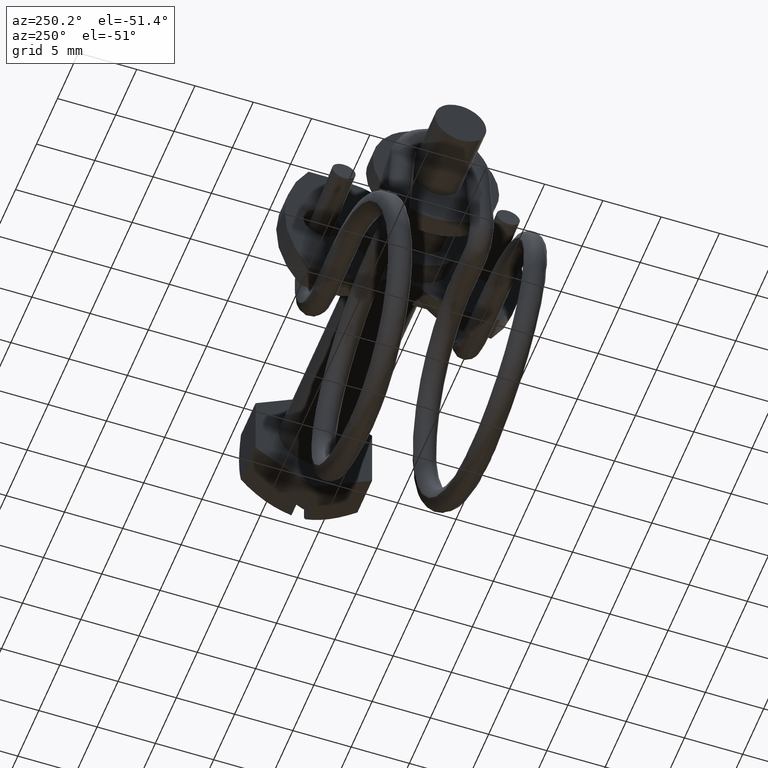
[diagram: clean part render]
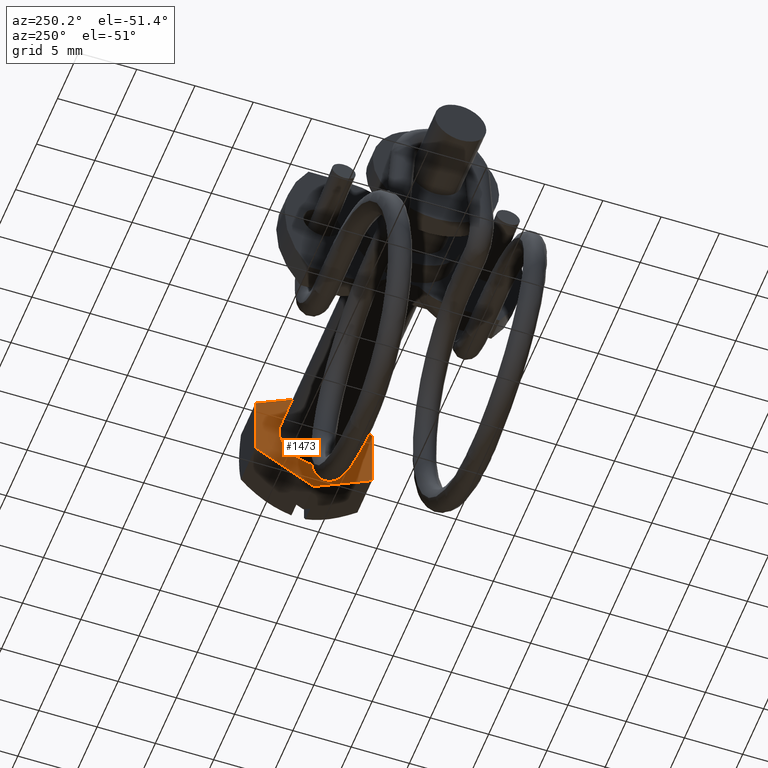
[diagram: same view with one face highlighted and labeled with its STEP entity id]
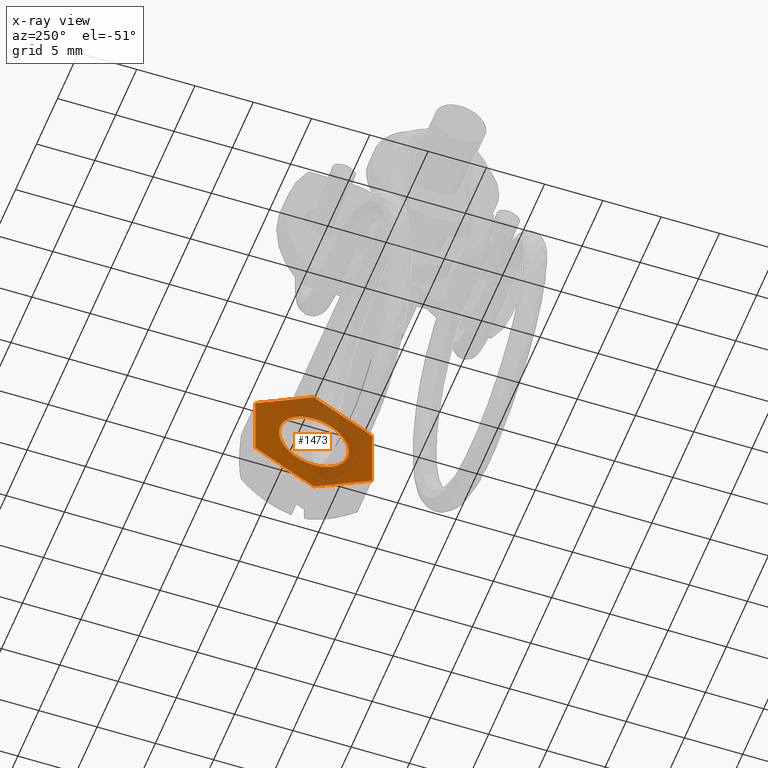
[diagram: x-ray of the same camera — body ghosted, the highlighted face saturated]
A machine part, auxiliary view. The second image highlights one B-rep face of the part: STEP entity #1473.
The next image is the same camera in x-ray: the body ghosted, the highlighted face saturated — about 39% of this face is hidden behind the body in this view.
In plain terms, the highlighted face is a freeform B-spline surface patch.
Its self-contained STEP definition (entity closure, byte-faithful):
#589=CARTESIAN_POINT('',(0.0,0.0,-3.0));
#590=VERTEX_POINT('',#589);
#591=CARTESIAN_POINT('',(5.712097E-014,2.102727746678321,-2.139751260807657));
#592=VERTEX_POINT('',#591);
#593=CARTESIAN_POINT('',(0.0,0.0,-3.0));
#594=CARTESIAN_POINT('',(7.582617E-015,0.279130018906865,-3.000098657542075));
#595=CARTESIAN_POINT('',(1.977837E-014,0.728078157412243,-2.936866854855096));
#596=CARTESIAN_POINT('',(3.554602E-014,1.308514160034198,-2.715660136565889));
#597=CARTESIAN_POINT('',(4.722256E-014,1.738349002171773,-2.461511566771414));
#598=CARTESIAN_POINT('',(5.406441E-014,1.990210032215983,-2.250332992287404));
#599=CARTESIAN_POINT('',(5.712097E-014,2.102727746678321,-2.139751260807657));
#600=B_SPLINE_CURVE_WITH_KNOTS('',3,(#593,#594,#595,#596,#597,#598,#599),.UNSPECIFIED.,.F.,.U.,(4,1,1,1,4),(8.240594E-009,0.837357205685020,1.347046372006930,1.856743269610042,2.330028839372953),.UNSPECIFIED.);
#601=EDGE_CURVE('',#590,#592,#600,.T.);
#603=CARTESIAN_POINT('',(0.0,-2.999999999999977,-0.000000376871535));
#604=VERTEX_POINT('',#603);
#605=CARTESIAN_POINT('',(0.0,-2.999999999999977,-0.000000376871535));
#606=CARTESIAN_POINT('',(0.0,-3.000021340475270,-0.184078000937512));
#607=CARTESIAN_POINT('',(0.0,-2.970534396940662,-0.503137248731517));
#608=CARTESIAN_POINT('',(0.0,-2.854190378377742,-0.955819971089859));
#609=CARTESIAN_POINT('',(0.0,-2.670550809957748,-1.399203420342934));
#610=CARTESIAN_POINT('',(0.0,-2.413268030836662,-1.805498225597032));
#611=CARTESIAN_POINT('',(0.0,-2.044088955693919,-2.217890061088955));
#612=CARTESIAN_POINT('',(0.0,-1.606096494430101,-2.559728283793609));
#613=CARTESIAN_POINT('',(0.0,-1.074155712069449,-2.819328080658640));
#614=CARTESIAN_POINT('',(0.0,-0.539951603878852,-2.967138629982071));
#615=CARTESIAN_POINT('',(0.0,-0.184076502783618,-3.000019889240078));
#616=CARTESIAN_POINT('',(0.0,0.0,-3.0));
#617=B_SPLINE_CURVE_WITH_KNOTS('',3,(#605,#606,#607,#608,#609,#610,#611,#612,#613,#614,#615,#616),.UNSPECIFIED.,.F.,.U.,(4,1,1,1,1,1,1,1,1,4),(0.000000030675332,0.552231513152408,0.957209199102623,1.399001721730165,1.988060695318683,2.393016103462590,3.055701798754166,3.644762689075339,4.160189628742622,4.712418336213807),.UNSPECIFIED.);
#618=EDGE_CURVE('',#604,#590,#617,.T.);
#620=CARTESIAN_POINT('',(5.712097E-014,-2.102727746678314,2.139751260807650));
#621=VERTEX_POINT('',#620);
#622=CARTESIAN_POINT('',(5.712097E-014,-2.102727746678314,2.139751260807650));
#623=CARTESIAN_POINT('',(5.363882E-014,-2.235495162240474,2.009309860084758));
#624=CARTESIAN_POINT('',(4.677441E-014,-2.452505298705501,1.752168811714757));
#625=CARTESIAN_POINT('',(3.504890E-014,-2.711964817352053,1.312931355633683));
#626=CARTESIAN_POINT('',(1.987282E-014,-2.933965564156122,0.744435517848420));
#627=CARTESIAN_POINT('',(7.618931E-015,-3.000123289216129,0.285404760503443));
#628=CARTESIAN_POINT('',(0.0,-2.999999999999977,-0.000000376871535));
#629=B_SPLINE_CURVE_WITH_KNOTS('',3,(#622,#623,#624,#625,#626,#627,#628),.UNSPECIFIED.,.F.,.U.,(4,1,1,1,4),(9.201337E-009,0.558372415715976,1.005072471479188,1.526215308070677,2.382390023058626),.UNSPECIFIED.);
#630=EDGE_CURVE('',#621,#604,#629,.T.);
#666=CARTESIAN_POINT('',(0.0,2.999999999999977,0.000000376871494));
#667=VERTEX_POINT('',#666);
#668=CARTESIAN_POINT('',(5.712097E-014,2.102727746678321,-2.139751260807657));
#669=CARTESIAN_POINT('',(5.317454E-014,2.253195300451661,-1.991917709924629));
#670=CARTESIAN_POINT('',(4.365881E-014,2.546584888944685,-1.635458382727389));
#671=CARTESIAN_POINT('',(2.899697E-014,2.818106770440074,-1.086225959998404));
#672=CARTESIAN_POINT('',(1.391178E-014,2.968711369994050,-0.521134784307661));
#673=CARTESIAN_POINT('',(4.968608E-015,3.000020334482753,-0.186123663339081));
#674=CARTESIAN_POINT('',(0.0,2.999999999999977,0.000000376871494));
#675=B_SPLINE_CURVE_WITH_KNOTS('',3,(#668,#669,#670,#671,#672,#673,#674),.UNSPECIFIED.,.F.,.U.,(4,1,1,1,4),(9.201515E-009,0.632822609612245,1.377317560774177,1.824017616540802,2.382390023058587),.UNSPECIFIED.);
#676=EDGE_CURVE('',#592,#667,#675,.T.);
#683=CARTESIAN_POINT('',(0.0,0.0,3.0));
#684=VERTEX_POINT('',#683);
#685=CARTESIAN_POINT('',(0.0,0.0,3.0));
#686=CARTESIAN_POINT('',(4.944969E-015,-0.182033373166678,3.000018829668836));
#687=CARTESIAN_POINT('',(1.384560E-014,-0.509681980636240,2.970075322213208));
#688=CARTESIAN_POINT('',(2.887987E-014,-1.063120941483481,2.825964490192257));
#689=CARTESIAN_POINT('',(4.353902E-014,-1.602751114935422,2.565925118372403));
#690=CARTESIAN_POINT('',(5.312418E-014,-1.955598457465110,2.284368098532413));
#691=CARTESIAN_POINT('',(5.712097E-014,-2.102727746678314,2.139751260807650));
#692=B_SPLINE_CURVE_WITH_KNOTS('',3,(#685,#686,#687,#688,#689,#690,#691),.UNSPECIFIED.,.F.,.U.,(4,1,1,1,4),(8.240195E-009,0.546100279163755,0.982982475612605,1.711114694730162,2.330028839372951),.UNSPECIFIED.);
#693=EDGE_CURVE('',#684,#621,#692,.T.);
#695=CARTESIAN_POINT('',(0.0,2.999999999999977,0.000000376871494));
#696=CARTESIAN_POINT('',(0.0,3.000014154251538,0.196347416634234));
#697=CARTESIAN_POINT('',(0.0,2.955315705059517,0.650419377666996));
#698=CARTESIAN_POINT('',(0.0,2.757664722253820,1.236685183868665));
#699=CARTESIAN_POINT('',(0.0,2.475688447632442,1.713569366037854));
#700=CARTESIAN_POINT('',(0.0,2.150455960498429,2.114933440990144));
#701=CARTESIAN_POINT('',(0.0,1.767146774211178,2.445573000309209));
#702=CARTESIAN_POINT('',(0.0,1.341875106527069,2.693387193799471));
#703=CARTESIAN_POINT('',(0.0,0.932946489137354,2.862781788418529));
#704=CARTESIAN_POINT('',(0.0,0.490870604336879,2.973517499908330));
#705=CARTESIAN_POINT('',(0.0,0.159531096282292,3.000007860002559));
#706=CARTESIAN_POINT('',(0.0,0.0,3.0));
#707=B_SPLINE_CURVE_WITH_KNOTS('',3,(#695,#696,#697,#698,#699,#700,#701,#702,#703,#704,#705,#706),.UNSPECIFIED.,.F.,.U.,(4,1,1,1,1,1,1,1,1,4),(0.000000030674934,0.589051886724058,1.362184178377192,1.840797948579152,2.245776641370526,2.908437889461853,3.350234743665167,3.718392774799742,4.233822062988002,4.712418336213831),.UNSPECIFIED.);
#708=EDGE_CURVE('',#667,#684,#707,.T.);
#1416=CARTESIAN_POINT('',(0.0,-5.499499980618059,-6.350276877369552));
#1417=CARTESIAN_POINT('',(0.0,5.499500248838960,-6.350276877369551));
#1418=CARTESIAN_POINT('',(0.0,-5.499499980618059,6.350274187084364));
#1419=CARTESIAN_POINT('',(0.0,5.499500248838960,6.350274187084364));
#1420=B_SPLINE_SURFACE_WITH_KNOTS('',1,1,((#1416,#1418),(#1417,#1419)),.UNSPECIFIED.,.F.,.F.,.U.,(2,2),(2,2),(0.0,10.999000229457019),(0.0,12.700551064453920),.UNSPECIFIED.);
#1421=CARTESIAN_POINT('',(0.0,0.0,5.773500999999901));
#1422=VERTEX_POINT('',#1421);
#1423=CARTESIAN_POINT('',(0.0,5.0,2.886751000000000));
#1424=VERTEX_POINT('',#1423);
#1425=CARTESIAN_POINT('',(0.0,0.0,5.773500999999901));
#1426=CARTESIAN_POINT('',(0.0,5.0,2.886751000000000));
#1427=QUASI_UNIFORM_CURVE('',1,(#1425,#1426),.UNSPECIFIED.,.F.,.U.);
#1428=EDGE_CURVE('',#1422,#1424,#1427,.T.);
#1429=ORIENTED_EDGE('',*,*,#1428,.T.);
#1430=CARTESIAN_POINT('',(0.0,5.0,-2.886752000000000));
#1431=VERTEX_POINT('',#1430);
#1432=CARTESIAN_POINT('',(0.0,5.0,2.886751000000000));
#1433=CARTESIAN_POINT('',(0.0,5.0,-2.886752000000000));
#1434=QUASI_UNIFORM_CURVE('',1,(#1432,#1433),.UNSPECIFIED.,.F.,.U.);
#1435=EDGE_CURVE('',#1424,#1431,#1434,.T.);
#1436=ORIENTED_EDGE('',*,*,#1435,.T.);
#1437=CARTESIAN_POINT('',(0.0,0.0,-5.773503999999900));
#1438=VERTEX_POINT('',#1437);
#1439=CARTESIAN_POINT('',(0.0,5.0,-2.886752000000000));
#1440=CARTESIAN_POINT('',(0.0,0.0,-5.773503999999900));
#1441=QUASI_UNIFORM_CURVE('',1,(#1439,#1440),.UNSPECIFIED.,.F.,.U.);
#1442=EDGE_CURVE('',#1431,#1438,#1441,.T.);
#1443=ORIENTED_EDGE('',*,*,#1442,.T.);
#1444=CARTESIAN_POINT('',(0.0,-5.0,-2.886752000000000));
#1445=VERTEX_POINT('',#1444);
#1446=CARTESIAN_POINT('',(0.0,0.0,-5.773503999999900));
#1447=CARTESIAN_POINT('',(0.0,-5.0,-2.886752000000000));
#1448=QUASI_UNIFORM_CURVE('',1,(#1446,#1447),.UNSPECIFIED.,.F.,.U.);
#1449=EDGE_CURVE('',#1438,#1445,#1448,.T.);
#1450=ORIENTED_EDGE('',*,*,#1449,.T.);
#1451=CARTESIAN_POINT('',(0.0,-5.0,2.886751000000000));
#1452=VERTEX_POINT('',#1451);
#1453=CARTESIAN_POINT('',(0.0,-5.0,-2.886752000000000));
#1454=CARTESIAN_POINT('',(0.0,-5.0,2.886751000000000));
#1455=QUASI_UNIFORM_CURVE('',1,(#1453,#1454),.UNSPECIFIED.,.F.,.U.);
#1456=EDGE_CURVE('',#1445,#1452,#1455,.T.);
#1457=ORIENTED_EDGE('',*,*,#1456,.T.);
#1458=CARTESIAN_POINT('',(0.0,-5.0,2.886751000000000));
#1459=CARTESIAN_POINT('',(0.0,0.0,5.773500999999901));
#1460=QUASI_UNIFORM_CURVE('',1,(#1458,#1459),.UNSPECIFIED.,.F.,.U.);
#1461=EDGE_CURVE('',#1452,#1422,#1460,.T.);
#1462=ORIENTED_EDGE('',*,*,#1461,.T.);
#1463=EDGE_LOOP('',(#1429,#1436,#1443,#1450,#1457,#1462));
#1464=FACE_OUTER_BOUND('',#1463,.T.);
#1465=ORIENTED_EDGE('',*,*,#708,.T.);
#1466=ORIENTED_EDGE('',*,*,#693,.T.);
#1467=ORIENTED_EDGE('',*,*,#630,.T.);
#1468=ORIENTED_EDGE('',*,*,#618,.T.);
#1469=ORIENTED_EDGE('',*,*,#601,.T.);
#1470=ORIENTED_EDGE('',*,*,#676,.T.);
#1471=EDGE_LOOP('',(#1465,#1466,#1467,#1468,#1469,#1470));
#1472=FACE_BOUND('',#1471,.T.);
#1473=ADVANCED_FACE('',(#1464,#1472),#1420,.F.);